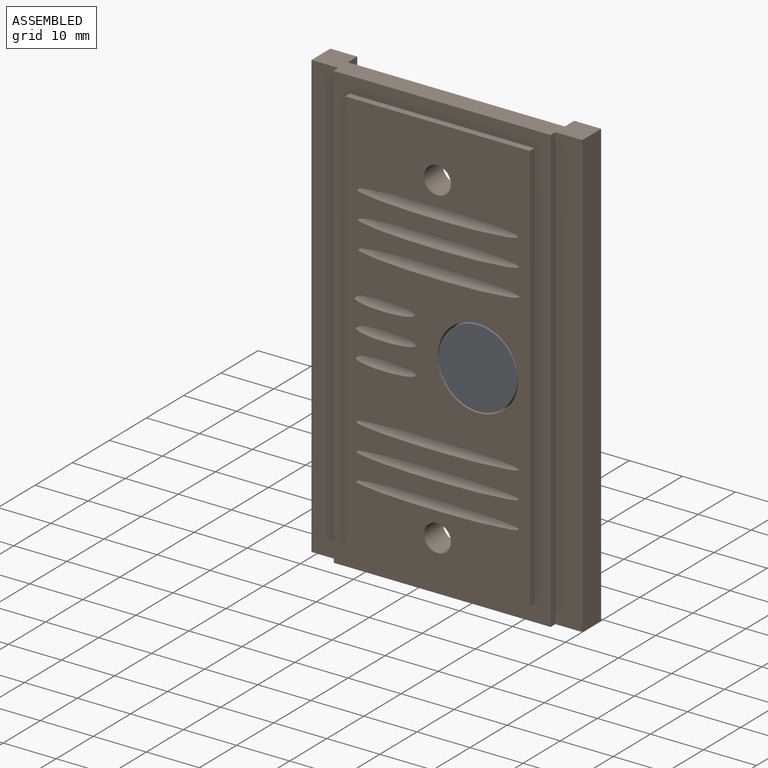
[diagram: assembled view]
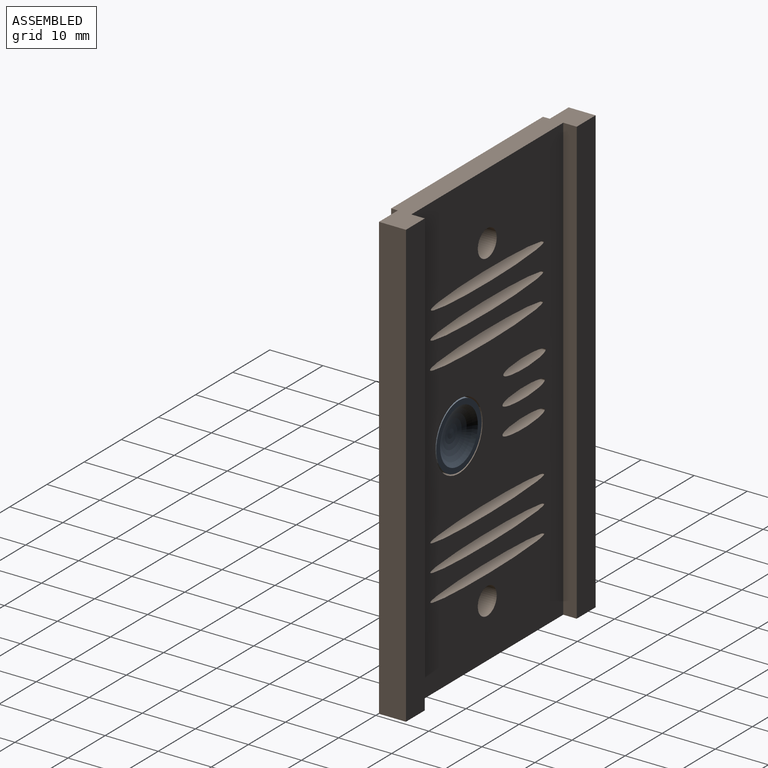
[diagram: assembled view, second angle]
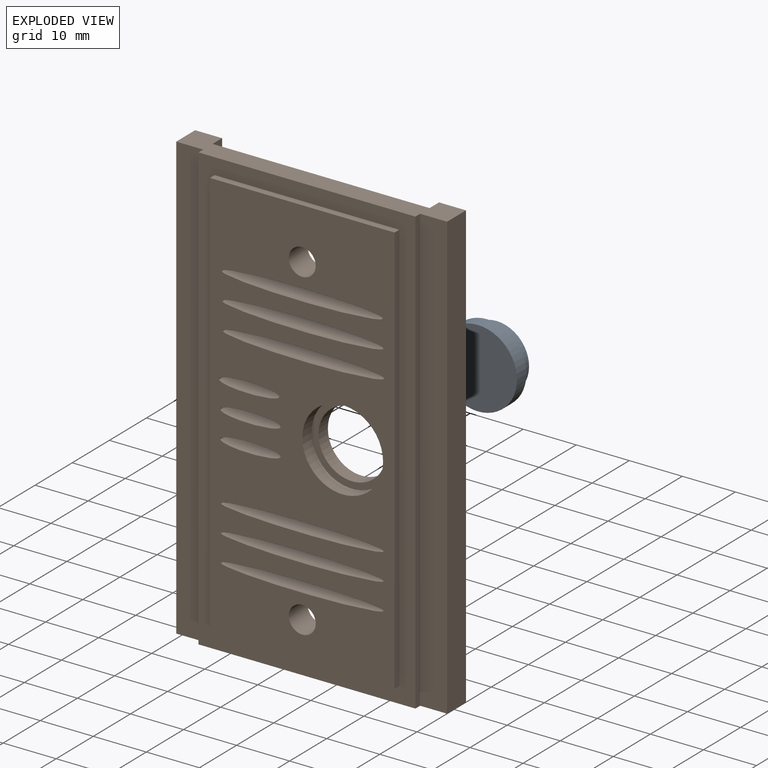
[diagram: exploded view]
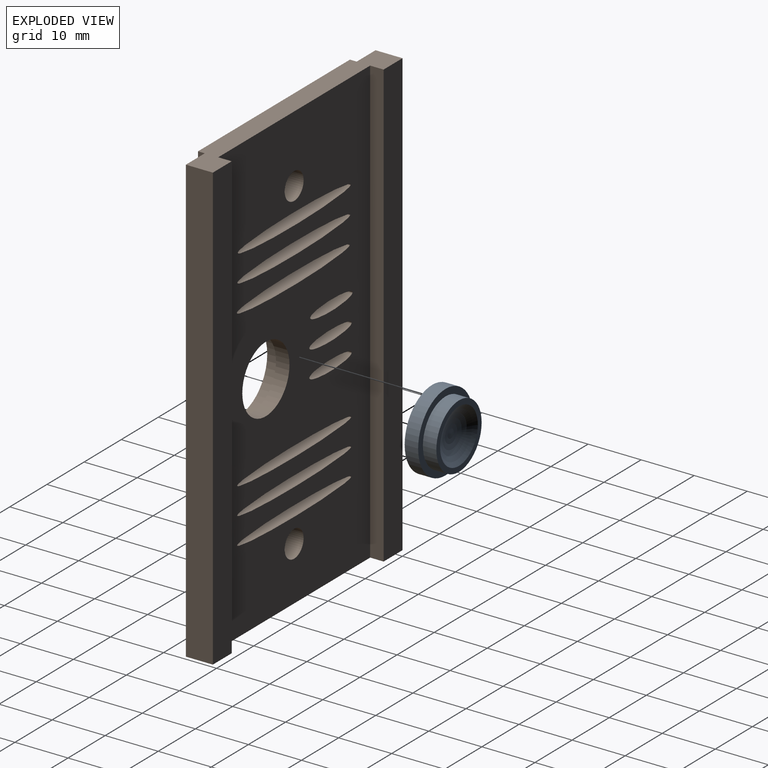
[diagram: exploded view, second angle]
ASSEMBLY  parts=2 mates=2
PART A: 6 faces, bbox 14.7x5.1x14.7 mm
  f0: cylinder r=6.1mm len=12.19mm, axis (0,1,0), area 97.3mm2, adj f1,f4
  f1: plane 12.19x12.19mm, normal (0,1,0), area 35.7mm2, adj f0,f5
  f2: cylinder r=7.37mm len=14.73mm, axis (0,1,0), area 117.6mm2, adj f3,f4
  f3: plane 14.73x14.73mm, normal (0,-1,0), area 170.5mm2, adj f2
  f4: plane 14.73x14.73mm, normal (0,1,0), area 53.7mm2, adj f0,f2
  f5: torus R=0.68mm, axis (0,-1,0), area 90.3mm2, adj f1
PART B: 33 faces, bbox 7.6x83.8x51.1 mm
  f0: cylinder r=6.35mm len=12.7mm, axis (1,0,0), area 101.3mm2, adj f14,f23
  f1: plane 83.82x40.89mm, normal (1,0,0), area 723.1mm2, adj f2,f3,f4,f5,f6,f7,f8,f9
  f2: plane 51.05x6.35mm, normal (0,-1,0), area 207.4mm2, adj f1,f3,f5,f11,f12,f13,f14,f15
  f3: plane 83.82x1.27mm, normal (0,0,-1), area 106.5mm2, adj f1,f2,f4,f15
  f4: plane 51.05x6.35mm, normal (0,1,0), area 207.4mm2, adj f1,f3,f5,f11,f12,f13,f14,f15
  f5: plane 83.82x1.27mm, normal (0,0,1), area 106.5mm2, adj f1,f2,f4,f11
  f6: plane 34.8x1.27mm, normal (0,-1,0), area 44.2mm2, adj f1,f7,f9,f10
  f7: plane 77.72x1.27mm, normal (0,0,-1), area 98.7mm2, adj f1,f6,f8,f10
  f8: plane 34.8x1.27mm, normal (0,1,0), area 44.2mm2, adj f1,f7,f9,f10
  f9: plane 77.72x1.27mm, normal (0,0,1), area 98.7mm2, adj f1,f6,f8,f10
  f10: plane 77.72x34.8mm, normal (1,0,0), area 2117.2mm2, adj f6,f7,f8,f9,f20,f21,f22,f24
  f11: plane 83.82x5.08mm, normal (1,0,0), area 425.8mm2, adj f2,f4,f5,f13
  f12: plane 83.82x5.08mm, normal (0,0,-1), area 425.8mm2, adj f2,f4,f15,f19
  f13: plane 83.82x5.08mm, normal (0,0,1), area 425.8mm2, adj f2,f4,f11,f17
  f14: plane 83.82x40.89mm, normal (-1,0,0), area 2896.1mm2, adj f0,f2,f4,f16,f18,f20,f21,f24
  f15: plane 83.82x5.08mm, normal (1,0,0), area 425.8mm2, adj f2,f3,f4,f12
  f16: plane 83.82x2.54mm, normal (0,0,-1), area 212.9mm2, adj f2,f4,f14,f17
  f17: plane 83.82x5.08mm, normal (-1,0,0), area 425.8mm2, adj f2,f4,f13,f16
  f18: plane 83.82x2.54mm, normal (0,0,1), area 212.9mm2, adj f2,f4,f14,f19
  f19: plane 83.82x5.08mm, normal (-1,0,0), area 425.8mm2, adj f2,f4,f12,f18
  f20: cylinder r=2.54mm len=5.08mm, axis (-1,0,0), area 81.1mm2, adj f10,f14
  f21: cylinder r=2.54mm len=5.08mm, axis (-1,0,0), area 81.1mm2, adj f10,f14
  f22: cylinder r=7.62mm len=15.24mm, axis (1,0,0), area 121.6mm2, adj f10,f23
  f23: plane 15.24x15.24mm, normal (1,0,0), area 55.7mm2, adj f0,f22
  f24: extruded ~30.66x5.08mm, area 315.3mm2, adj f10,f14
  f25: extruded ~30.66x5.08mm, area 315.3mm2, adj f10,f14
  f26: extruded ~30.66x5.08mm, area 315.3mm2, adj f10,f14
  f27: extruded ~11.39x5.08mm, area 120.6mm2, adj f10,f14
  f28: extruded ~11.39x5.08mm, area 120.6mm2, adj f10,f14
  f29: extruded ~11.39x5.08mm, area 120.6mm2, adj f10,f14
  f30: extruded ~30.37x5.08mm, area 312.9mm2, adj f10,f14
  f31: extruded ~30.37x5.08mm, area 312.9mm2, adj f10,f14
  f32: extruded ~30.37x5.08mm, area 312.9mm2, adj f10,f14
PLACE A rot(axis=(1,0.01,0.01),0deg) t=(3.93,14.44,36.97)mm
PLACE B rot(axis=(0.58,-0.58,-0.58),120deg) t=(16.75,11.9,-4.18)mm
MATE slider B.f0 <-> A.f2  axis (0,-1,0) through (3.93,11.9,36.97)mm
MATE planar B.f10 <-> A.f2  axis (0,-1,0) through (-3.45,9.36,51.19)mm
